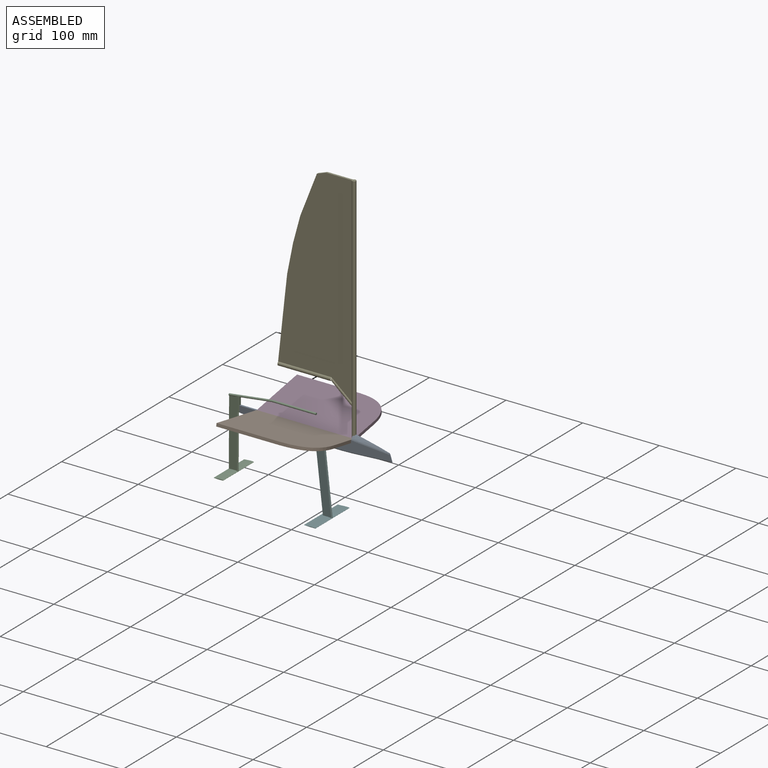
[diagram: assembled view]
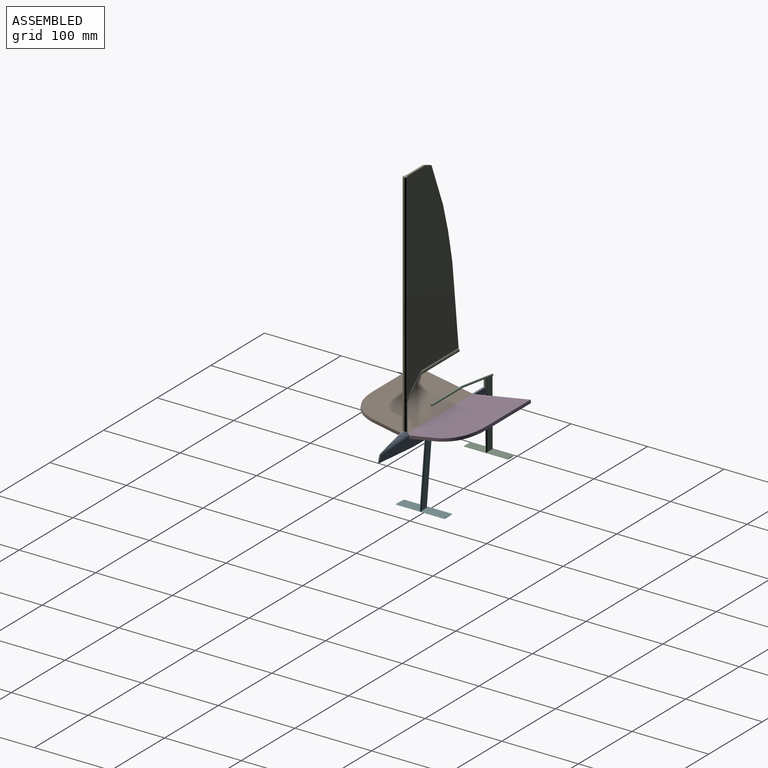
[diagram: assembled view, second angle]
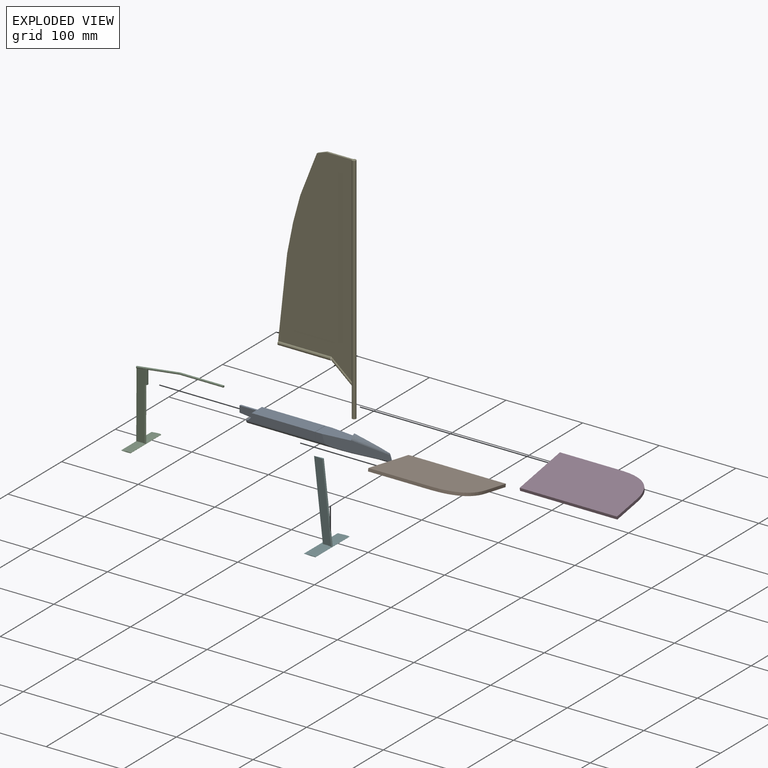
[diagram: exploded view]
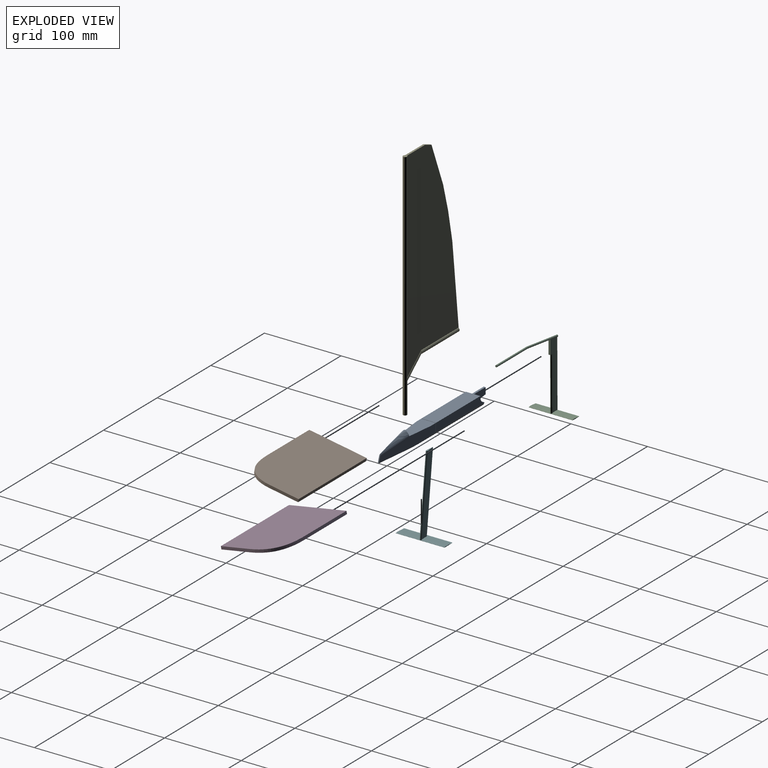
[diagram: exploded view, second angle]
ASSEMBLY  parts=6 mates=5
PART A: 34 faces, bbox 200.5x20.7x23.5 mm
  f0: cylinder r=8.92mm len=10.03mm, axis (0,1,0), area 113.2mm2, adj f11,f13,f16,f21,f33
  f1: plane 177.94x8.89mm, normal (0,0,-1), area 1403.7mm2, adj f11,f21,f22,f25,f26
  f2: plane 18.54x0.56mm, normal (0,0,1), area 10.4mm2, adj f3,f4,f5,f12
  f3: plane 11.26x0.56mm, normal (0,-1,0), area 6.3mm2, adj f2,f5,f12,f22
  f4: plane 11.26x0.56mm, normal (0,1,0), area 6.3mm2, adj f2,f5,f12,f21
  f5: plane 19.05x11.5mm, normal (-1,0,0), area 10.1mm2, adj f2,f3,f4,f8,f9,f10,f21,f22
  f6: plane 10.63x3.74mm, normal (0.95,0,0.31), area 12.1mm2, adj f17,f18,f19,f20,f25,f26
  f7: plane 12.83x7.86mm, normal (-1,0,0), area 46.2mm2, adj f8,f17,f18,f19,f20
  f8: plane 43.74x19.05mm, normal (0,0,1), area 695.4mm2, adj f5,f7,f9,f10,f17,f18,f23,f28
  f9: plane 11.66x9.92mm, normal (0,-1,0), area 99.5mm2, adj f5,f8,f22,f28
  f10: plane 11.66x9.92mm, normal (0,1,0), area 99.5mm2, adj f5,f8,f21,f23
  f11: plane 19.05x4.96mm, normal (-1,0,0), area 83.5mm2, adj f0,f1,f14,f21,f22,f29
  f12: plane 19.05x11.5mm, normal (1,0,0), area 10.1mm2, adj f2,f3,f4,f13,f15,f16,f21,f22
  f13: plane 104.33x19.05mm, normal (0,0,1), area 1630.4mm2, adj f0,f12,f14,f15,f16,f30,f32,f33
  f14: cylinder r=8.92mm len=10.03mm, axis (0,1,0), area 113.2mm2, adj f11,f13,f15,f22,f32
  f15: plane 89.44x9.92mm, normal (0,-1,0), area 834.5mm2, adj f12,f13,f14,f22
  f16: plane 89.44x9.92mm, normal (0,1,0), area 834.5mm2, adj f0,f12,f13,f21
  f17: plane 84.6x13.95mm, normal (0.11,0.99,0.04), area 937.3mm2, adj f6,f7,f8,f19,f23,f24,f25
  f18: plane 84.6x13.95mm, normal (0.11,-0.99,0.04), area 937.3mm2, adj f6,f7,f8,f20,f26,f27,f28
  f19: bspline ~53.44x13.49mm, area 256.4mm2, adj f6,f7,f17,f20
  f20: bspline ~53.44x13.49mm, area 256.5mm2, adj f6,f7,f18,f19
  f21: cylinder r=5.08mm len=137.84mm, axis (1,0,0), area 920.7mm2, adj f0,f1,f4,f5,f10,f11,f12,f16
  f22: cylinder r=5.08mm len=137.84mm, axis (-1,0,0), area 920.7mm2, adj f1,f3,f5,f9,f11,f12,f14,f15
  f23: cylinder r=1.27mm len=9.96mm, axis (0.31,0,-0.95), area 1.5mm2, adj f8,f10,f17,f24
  f24: bspline ~40.55x5.79mm, area 47.1mm2, adj f17,f21,f23,f25
  f25: cylinder r=1.27mm len=46.31mm, axis (0.99,-0.11,0), area 92.2mm2, adj f1,f6,f17,f24,f26
  f26: cylinder r=1.27mm len=46.31mm, axis (0.99,0.11,0), area 92.2mm2, adj f1,f6,f18,f25,f27
  f27: bspline ~40.55x5.79mm, area 47.1mm2, adj f18,f22,f26,f28
  f28: cylinder r=1.27mm len=9.96mm, axis (-0.31,0,0.95), area 1.5mm2, adj f8,f9,f18,f27
  f29: plane 13.97x2.54mm, normal (-0.12,0,-0.99), area 35.7mm2, adj f11,f31,f32,f33
  f30: plane 8.37x2.54mm, normal (-1,0,0), area 21.3mm2, adj f13,f31,f32,f33
  f31: plane 2.54x0.37mm, normal (0,0,-1), area 0.9mm2, adj f29,f30,f32,f33
  f32: plane 21.72x10.03mm, normal (0,-1,0), area 189.7mm2, adj f13,f14,f29,f30,f31
  f33: plane 21.72x10.03mm, normal (0,1,0), area 189.7mm2, adj f0,f13,f29,f30,f31
PART B: 7 faces, bbox 127x76.2x3.8 mm
  f0: plane 127x3.81mm, normal (0,1,0), area 483.9mm2, adj f1,f4,f5,f6
  f1: plane 76.2x3.81mm, normal (-1,0,0), area 290.3mm2, adj f0,f2,f5,f6
  f2: plane 76.2x3.81mm, normal (0,-1,0), area 290.3mm2, adj f1,f3,f5,f6
  f3: extruded ~50.8x38.1mm, area 277.8mm2, adj f2,f4,f5,f6
  f4: plane 38.1x3.81mm, normal (1,0,0), area 145.2mm2, adj f0,f3,f5,f6
  f5: plane 127x76.2mm, normal (0,0,-1), area 9375mm2, adj f0,f1,f2,f3,f4
  f6: plane 127x76.2mm, normal (0,0,1), area 9375mm2, adj f0,f1,f2,f3,f4
PART C: 23 faces, bbox 114.6x57.5x100.1 mm
  f0: plane 1.89x0.25mm, normal (-0.13,0,0.99), area 0mm2, adj f3,f5,f6,f17
  f1: plane 1.89x0.25mm, normal (-0.13,0,0.99), area 0mm2, adj f2,f5,f7,f17
  f2: plane 89.28x13.09mm, normal (-0.1,1,0), area 1041.7mm2, adj f1,f3,f4,f7,f11,f15,f17,f18
  f3: plane 89.28x13.09mm, normal (-0.1,-1,0), area 1041.8mm2, adj f0,f2,f4,f6,f9,f16,f17,f18
  f4: plane 3.18x2.88mm, normal (0,0,-1), area 5.6mm2, adj f2,f3,f5,f6,f7,f15,f16
  f5: plane 19.12x2.61mm, normal (1,0,0), area 45.9mm2, adj f0,f1,f4,f6,f7,f17
  f6: plane 19.05x1.86mm, normal (0,-1,0), area 34.4mm2, adj f0,f3,f4,f5
  f7: plane 19.05x1.86mm, normal (0,1,0), area 34.4mm2, adj f1,f2,f4,f5
  f8: plane 57.15x0.05mm, normal (1,0,0), area 2.7mm2, adj f9,f10,f11,f13,f14
  f9: extruded ~28.58x12.7mm, area 362.2mm2, adj f3,f8,f12,f13,f16
  f10: extruded ~57.15x12.73mm, area 730.4mm2, adj f8,f12,f13,f14
  f11: extruded ~28.58x12.7mm, area 362.2mm2, adj f2,f8,f12,f14,f15
  f12: plane 57.15x0.03mm, normal (0,0,1), area 1.5mm2, adj f9,f10,f11,f13,f14
  f13: plane 12.73x1.56mm, normal (0,-1,0), area 9.2mm2, adj f8,f9,f10,f12
  f14: plane 12.73x1.56mm, normal (0,1,0), area 9.2mm2, adj f8,f10,f11,f12
  f15: bspline ~77.46x1.61mm, area 109.8mm2, adj f2,f4,f11,f16
  f16: bspline ~77.46x1.61mm, area 109.8mm2, adj f3,f4,f9,f15
  f17: cone r=1.26mm half-angle=0deg, axis (0.99,0,0.13), area 424.9mm2, adj f0,f1,f2,f3,f5,f18,f19,f20
  f18: cone r=0mm half-angle=82.3deg, axis (0.99,0,0.13), area 5mm2, adj f2,f3,f17
  f19: plane 2.61x1.34mm, normal (-1,0,0), area 0mm2, adj f17,f22
  f20: plane 2.61x1.34mm, normal (-1,0,0), area 0mm2, adj f17,f22
  f21: plane 2.54x2.54mm, normal (1,0,0), area 5.1mm2, adj f22
  f22: cylinder r=1.27mm len=57.15mm, axis (-1,0,0), area 456mm2, adj f19,f20,f21
PART D: same geometry as B
PART E: 33 faces, bbox 100.8x5.1x304.8 mm
  f0: cylinder r=1.94mm len=31.2mm, axis (-0.76,0,0.65), area 419.5mm2, adj f1,f7,f8,f21,f24
  f1: cylinder r=2.54mm len=304.8mm, axis (0,0,1), area 4150.7mm2, adj f0,f2,f3,f4,f5,f6,f13,f21
  f2: plane 5.08x4.74mm, normal (0,0,1), area 14.1mm2, adj f1,f11,f12,f13,f32
  f3: plane 5.08x5.08mm, normal (0,0,-1), area 20.3mm2, adj f1
  f4: cone r=1.94mm half-angle=49.8deg, axis (-0.76,0,0.65), area 1mm2, adj f1,f5,f6
  f5: cylinder r=1.94mm len=1.71mm, axis (-0.76,0,0.65), area 0.1mm2, adj f1,f4
  f6: cylinder r=1.94mm len=1.71mm, axis (-0.76,0,0.65), area 0.1mm2, adj f1,f4
  f7: plane 5.08x2.54mm, normal (1,0,0), area 2.4mm2, adj f0,f9,f24
  f8: plane 5.08x2.54mm, normal (1,0,0), area 2.4mm2, adj f0,f9,f21
  f9: cylinder r=2.54mm len=69.56mm, axis (1,0,0), area 1097.8mm2, adj f7,f8,f10,f21,f22,f23,f24
  f10: plane 5.08x5.08mm, normal (-1,0,0), area 20.3mm2, adj f9,f22,f23
  f11: plane 1.27x0.02mm, normal (1,0.02,0), area 0mm2, adj f2,f13,f20
  f12: plane 1.27x0.02mm, normal (1,-0.02,0), area 0mm2, adj f2,f25,f32
  f13: plane 261.77x98.3mm, normal (0,-1,0), area 18776.8mm2, adj f1,f2,f11,f14,f15,f16,f17,f18
  f14: plane 78.2x8.63mm, normal (-0.99,0.02,0.11), area 99.9mm2, adj f13,f15,f22,f31
  f15: plane 28.29x3.23mm, normal (-0.99,0.02,0.11), area 36.2mm2, adj f13,f14,f16,f30
  f16: plane 38.69x7.77mm, normal (-0.98,0.02,0.2), area 50.1mm2, adj f13,f15,f17,f29
  f17: plane 34.43x9.37mm, normal (-0.96,0.02,0.26), area 45.3mm2, adj f13,f16,f18,f28
  f18: plane 55.25x21.65mm, normal (-0.93,0.02,0.36), area 75.3mm2, adj f13,f17,f19,f27
  f19: plane 12.18x4.54mm, normal (-0.35,0.02,0.94), area 16.5mm2, adj f13,f18,f20,f26
  f20: plane 35.59x1.27mm, normal (0,0.02,1), area 45.2mm2, adj f11,f13,f19,f25
  f21: plane 26.5x22.43mm, normal (-0.65,0.02,-0.76), area 41.4mm2, adj f0,f1,f8,f9,f13,f22
  f22: plane 69.59x1.27mm, normal (0,0.02,-1), area 82.2mm2, adj f9,f10,f13,f14,f21
  f23: plane 69.59x1.27mm, normal (0,-0.02,-1), area 82.2mm2, adj f9,f10,f24,f31,f32
  f24: plane 26.5x22.43mm, normal (-0.65,-0.02,-0.76), area 41.4mm2, adj f0,f1,f7,f9,f23,f32
  f25: plane 35.59x1.27mm, normal (0,-0.02,1), area 45.2mm2, adj f12,f20,f26,f32
  f26: plane 12.18x4.54mm, normal (-0.35,-0.02,0.94), area 16.5mm2, adj f19,f25,f27,f32
  f27: plane 55.25x21.65mm, normal (-0.93,-0.02,0.36), area 75.3mm2, adj f18,f26,f28,f32
  f28: plane 34.43x9.37mm, normal (-0.96,-0.02,0.26), area 45.3mm2, adj f17,f27,f29,f32
  f29: plane 38.69x7.77mm, normal (-0.98,-0.02,0.2), area 50.1mm2, adj f16,f28,f30,f32
  f30: plane 28.29x3.23mm, normal (-0.99,-0.02,0.11), area 36.2mm2, adj f15,f29,f31,f32
  f31: plane 78.2x8.63mm, normal (-0.99,-0.02,0.11), area 99.9mm2, adj f14,f23,f30,f32
  f32: plane 261.77x98.3mm, normal (0,1,0), area 18776.8mm2, adj f1,f2,f12,f23,f24,f25,f26,f27
PART F: 11 faces, bbox 25.1x63.8x111.7 mm
  f0: plane 13.04x2.71mm, normal (0,0,1), area 15.1mm2, adj f7,f8,f9,f10
  f1: extruded ~31.75x12.7mm, area 399mm2, adj f3,f4,f5,f8,f9
  f2: extruded ~31.75x12.7mm, area 399mm2, adj f3,f4,f6,f7,f10
  f3: plane 63.5x2.73mm, normal (0,0,1), area 173.4mm2, adj f1,f2,f4,f5,f6
  f4: extruded ~63.5x15.43mm, area 985.6mm2, adj f1,f2,f3,f5,f6
  f5: plane 15.44x1.18mm, normal (0,-1,0), area 7.7mm2, adj f1,f3,f4
  f6: plane 15.44x1.18mm, normal (0,1,0), area 7.7mm2, adj f2,f3,f4
  f7: bspline ~111.34x13.95mm, area 157.4mm2, adj f0,f2,f8,f10
  f8: bspline ~111.34x13.95mm, area 157.4mm2, adj f0,f1,f7,f9
  f9: plane 100.95x23.22mm, normal (-0.1,-1,-0.01), area 1186.7mm2, adj f0,f1,f8,f10
  f10: plane 100.95x23.22mm, normal (-0.1,1,-0.01), area 1186.6mm2, adj f0,f2,f7,f9
PLACE A t=(-20.44,-0.08,-45.57)mm
PLACE B rot(axis=(-1,0,0),10deg) t=(-11.6,-37.94,-30.79)mm
PLACE C t=(-105.05,-0.08,-69.92)mm
PLACE D rot(axis=(-1,0,0),170deg) t=(-11.6,37.77,-30.79)mm
PLACE E t=(54.44,-0.08,116.87)mm
PLACE F t=(29.75,-0.08,-104.95)mm
MATE fastened C.f5 <-> A.f30  axis (1,0,0) through (-96.73,-0.08,-43.91)mm
MATE revolute D.f4 <-> A.f7  axis (1,0,0) through (51.9,-0.08,-35.53)mm
MATE revolute B.f4 <-> A.f7  axis (1,0,0) through (51.9,-0.08,-35.53)mm
MATE fastened F.f0 <-> A.f2  axis (0,0,1) through (7.89,-0.08,-35.78)mm
MATE fastened E.f1 <-> A.f8  axis (0,0,-1) through (51.9,-0.08,-35.53)mm
